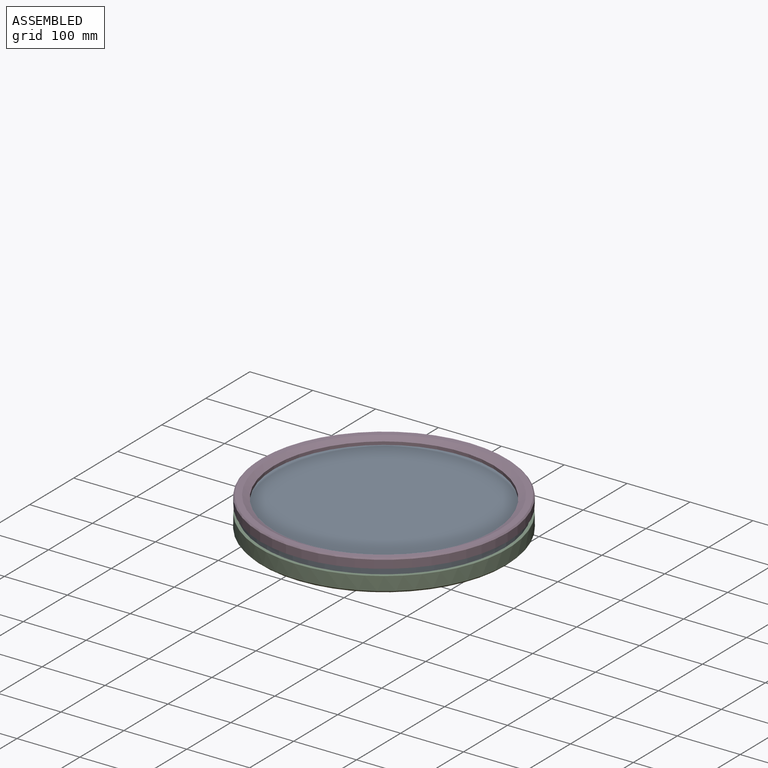
[diagram: assembled view]
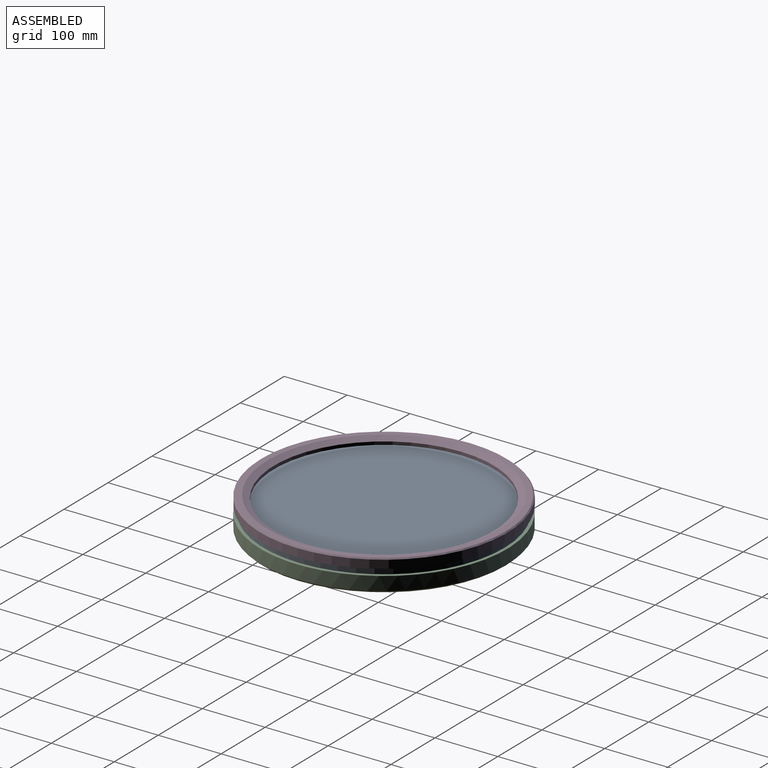
[diagram: assembled view, second angle]
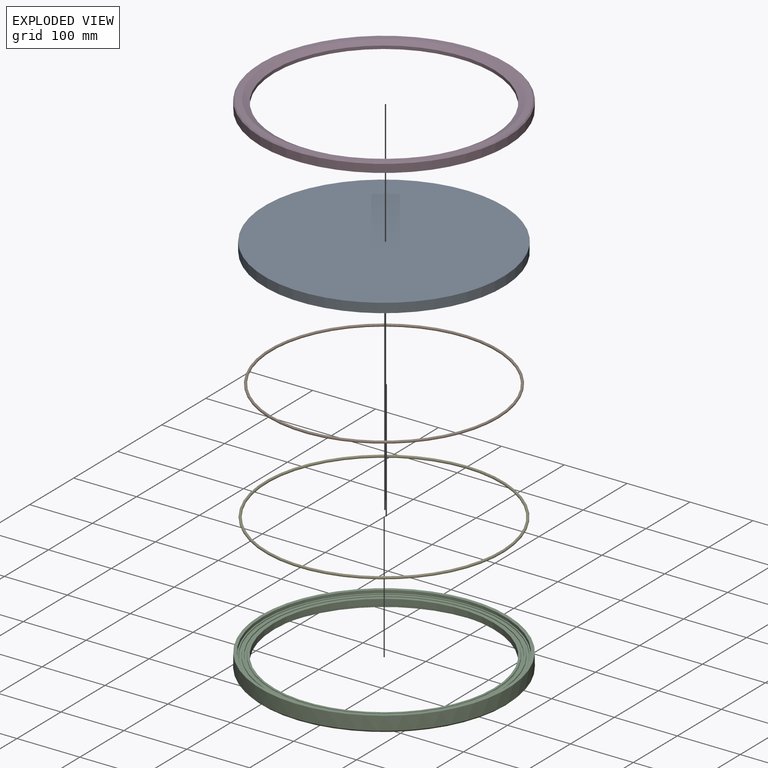
[diagram: exploded view]
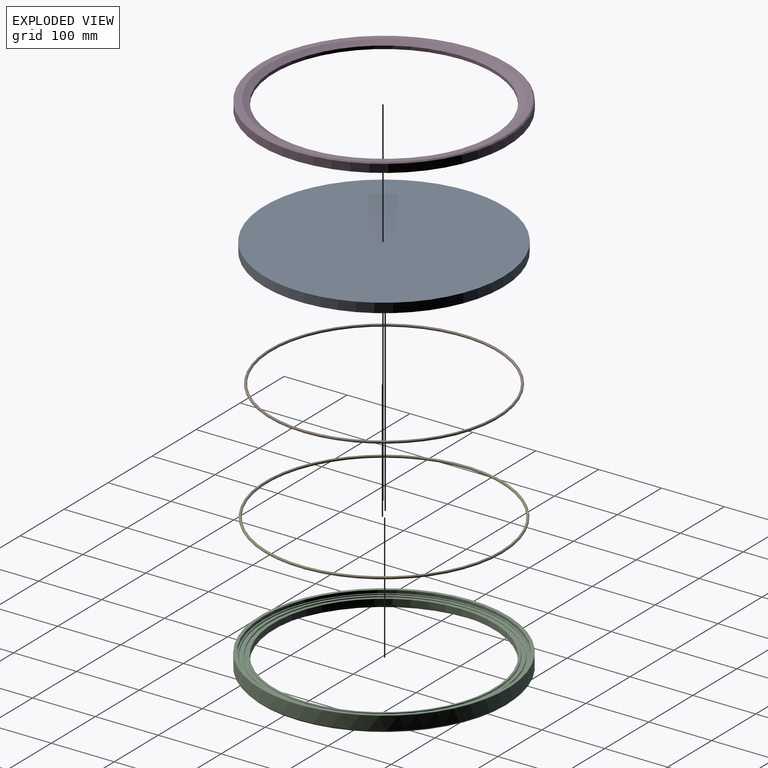
[diagram: exploded view, second angle]
ASSEMBLY  parts=5 mates=4
PART A: 3 faces, bbox 380x380x15 mm
  f0: cylinder r=190mm len=380mm, axis (0,0,-1), area 17907.1mm2, adj f1,f2
  f1: plane 380x380mm, normal (0,0,1), area 113411.5mm2, adj f0
  f2: plane 380x380mm, normal (0,0,-1), area 113411.5mm2, adj f0
PART B: 1 faces, bbox 395.1x395.1x4 mm
  f0: torus R=180.5mm, axis (0,0,1), area 14251.7mm2
PART C: 30 faces, bbox 425.4x425.4x25 mm
  f0: cylinder r=182.5mm len=365mm, axis (0,0,-1), area 917.3mm2, adj f1,f28
  f1: torus R=182.7mm, axis (0,0,-1), area 360.4mm2, adj f0,f2
  f2: plane 370.6x370.6mm, normal (0,0,1), area 3005.9mm2, adj f1,f3
  f3: torus R=185.3mm, axis (0,0,-1), area 366mm2, adj f2,f4
  f4: cylinder r=185.5mm len=371mm, axis (0,0,-1), area 932.4mm2, adj f3,f5
  f5: torus R=186.5mm, axis (0,0,-1), area 1834.4mm2, adj f4,f6
  f6: plane 377x377mm, normal (0,0,1), area 2356.2mm2, adj f5,f7
  f7: torus R=188.5mm, axis (0,0,-1), area 1866.7mm2, adj f6,f8
  f8: cylinder r=189.5mm len=379mm, axis (0,0,-1), area 952.5mm2, adj f7,f9
  f9: torus R=189.7mm, axis (0,0,-1), area 374.2mm2, adj f8,f10
  f10: plane 383x383mm, normal (0,0,1), area 2155.6mm2, adj f9,f11
  f11: cylinder r=191.5mm len=383mm, axis (0,0,-1), area 5414.5mm2, adj f10,f12
  f12: torus R=192mm, axis (0,0,-1), area 945.9mm2, adj f11,f13
  f13: plane 392x392mm, normal (0,0,1), area 4875.8mm2, adj f12,f14
  f14: torus R=196mm, axis (0,0,-1), area 968.8mm2, adj f13,f15
  f15: cylinder r=196.5mm len=393mm, axis (0,0,-1), area 26544.9mm2, adj f14,f29
  f16: plane 387x387mm, normal (0,0,-1), area 1816.6mm2, adj f17,f29
  f17: torus R=192mm, axis (0,0,-1), area 945.9mm2, adj f16,f18
  f18: cylinder r=191.5mm len=383mm, axis (0,0,-1), area 11430.7mm2, adj f17,f19
  f19: plane 383x383mm, normal (0,0,-1), area 18447.4mm2, adj f18,f20
  f20: torus R=175.5mm, axis (0,0,-1), area 864.5mm2, adj f19,f21
  f21: cylinder r=175mm len=350mm, axis (0,0,-1), area 9896mm2, adj f20,f22
  f22: torus R=175.5mm, axis (0,0,-1), area 864.5mm2, adj f21,f23
  f23: plane 356.6x356.6mm, normal (0,0,1), area 3112.2mm2, adj f22,f24
  f24: torus R=178.3mm, axis (0,0,-1), area 352.2mm2, adj f23,f25
  f25: cylinder r=178.5mm len=357mm, axis (0,0,-1), area 897.2mm2, adj f24,f26
  f26: torus R=179.5mm, axis (0,0,-1), area 1765.3mm2, adj f25,f27
  f27: plane 363x363mm, normal (0,0,1), area 2268.2mm2, adj f26,f28
  f28: torus R=181.5mm, axis (0,0,-1), area 1797.6mm2, adj f0,f27
  f29: cone r=193.5mm half-angle=45deg, axis (0,0,1), area 5198.2mm2, adj f15,f16
PART D: 8 faces, bbox 393x393x15 mm
  f0: plane 393x393mm, normal (0,0,-1), area 6094.7mm2, adj f1,f6
  f1: cylinder r=191.5mm len=383mm, axis (0,0,1), area 6016.1mm2, adj f0,f2
  f2: plane 383x383mm, normal (0,0,-1), area 18998mm2, adj f1,f3
  f3: cylinder r=175mm len=350mm, axis (0,0,1), area 5497.8mm2, adj f2,f4
  f4: cone r=175mm half-angle=63.4deg, axis (0,0,1), area 12644.7mm2, adj f3,f5
  f5: plane 389x389mm, normal (0,0,1), area 11326.2mm2, adj f4,f7
  f6: cylinder r=196.5mm len=393mm, axis (0,0,1), area 16050.4mm2, adj f0,f7
  f7: cone r=194.5mm half-angle=45deg, axis (0,0,-1), area 3474.3mm2, adj f5,f6
PART E: 1 faces, bbox 410.2x410.2x4 mm
  f0: torus R=187.5mm, axis (0,0,1), area 14804.4mm2
PLACE A rot(axis=(0,0,1),90deg) t=(-20.59,34.57,77.19)mm
PLACE B t=(-20.59,34.57,77.19)mm
PLACE C t=(-20.59,34.57,57.19)mm fixed
PLACE D t=(-20.59,34.57,107.19)mm
PLACE E rot(axis=(0,0,1),90deg) t=(-20.59,34.57,75.19)mm
MATE fastened E.f0 <-> C.f0  axis (0,0,1) through (-20.59,34.57,75.19)mm
MATE fastened B.f0 <-> C.f0  axis (0,0,1) through (-20.59,34.57,77.19)mm
MATE fastened D.f1 <-> A.f0  axis (0,0,-1) through (-20.59,34.57,92.19)mm
MATE fastened A.f0 <-> C.f0  axis (0,0,-1) through (-20.59,34.57,77.19)mm
